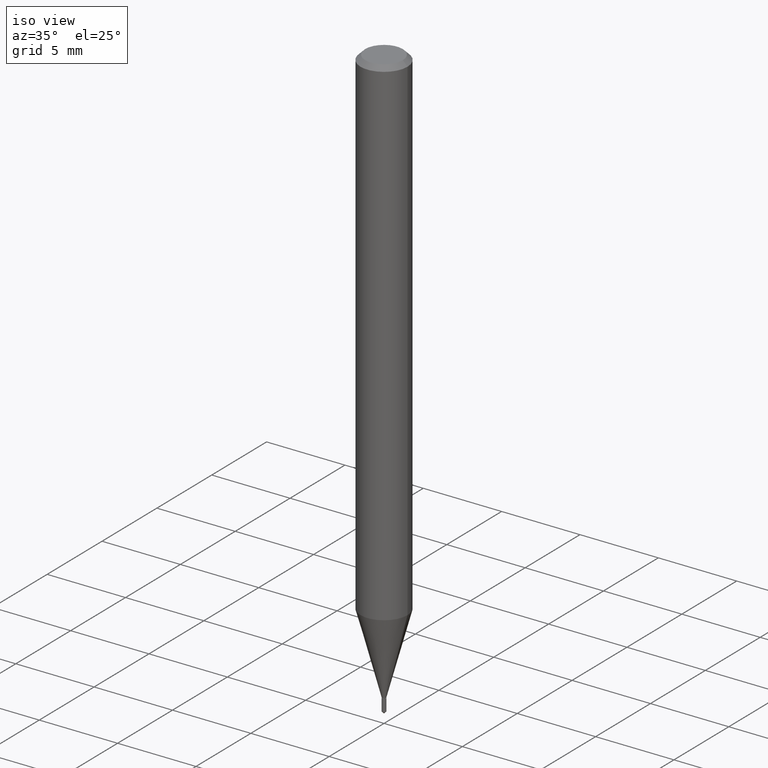
[diagram: clean part render]
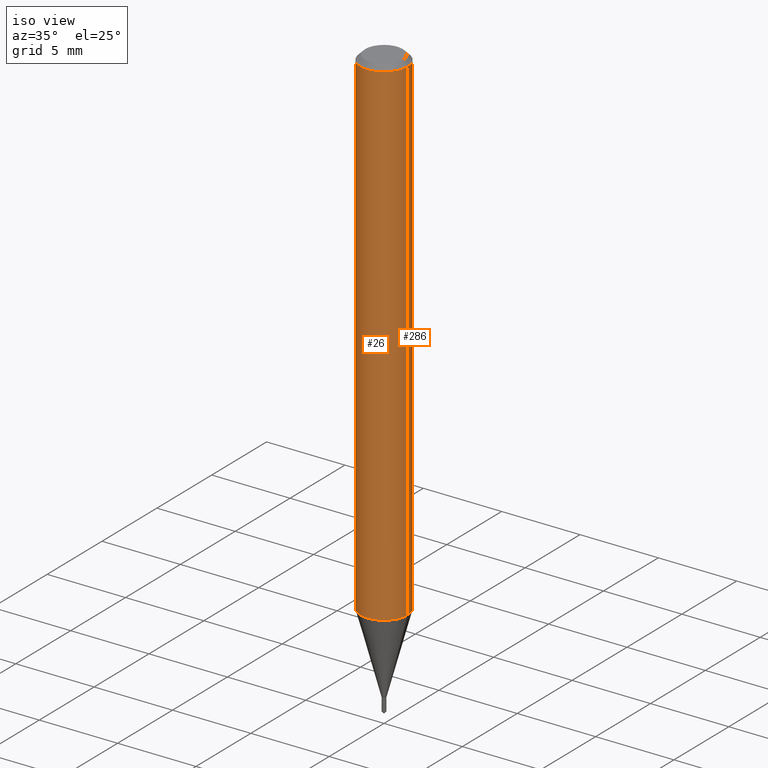
[diagram: same view with one multi-face feature highlighted, each face labeled with its STEP entity id]
A machine part, iso view. The highlighted faces form ONE feature: a constant-radius fillet chain: 2 tangent blend faces with common blend radius 1.4999 mm. The faces share edges in the B-rep.
Their STEP definitions:
[1] entity #26 (Cylinder):
#3 = VERTEX_POINT ( 'NONE', #424 ) ;
#23 = VECTOR ( 'NONE', #184, 39.37007874015748143 ) ;
#26 = ADVANCED_FACE ( 'NONE', ( #76 ), #464, .T. ) ;
#28 = ORIENTED_EDGE ( 'NONE', *, *, #42, .T. ) ;
#42 = EDGE_CURVE ( 'NONE', #3, #381, #220, .T. ) ;
#46 = VECTOR ( 'NONE', #110, 39.37007874015748143 ) ;
#60 = AXIS2_PLACEMENT_3D ( 'NONE', #336, #227, #155 ) ;
#76 = FACE_OUTER_BOUND ( 'NONE', #450, .T. ) ;
#88 = DIRECTION ( 'NONE',  ( -2.445468806185136597E-29, 3.491481338843145583E-15, 1.000000000000000000 ) ) ;
#95 = ORIENTED_EDGE ( 'NONE', *, *, #199, .T. ) ;
#99 = VERTEX_POINT ( 'NONE', #109 ) ;
#109 = CARTESIAN_POINT ( 'NONE',  ( -0.05905000000000017180, -3.969598695798013952E-15, -1.257109448770144855 ) ) ;
#110 = DIRECTION ( 'NONE',  ( -2.445468806185136877E-29, 3.491481338843145188E-15, 1.000000000000000000 ) ) ;
#123 = CARTESIAN_POINT ( 'NONE',  ( 3.074221942927981307E-29, -4.389174181264353445E-15, -1.257109448770144855 ) ) ;
#139 = ORIENTED_EDGE ( 'NONE', *, *, #233, .F. ) ;
#148 = CARTESIAN_POINT ( 'NONE',  ( 0.05904999999999999832, -4.535783407291118600E-16, -0.01181000000000007565 ) ) ;
#155 = DIRECTION ( 'NONE',  ( 1.000000000000000000, -6.982962677686267499E-15, 4.876176775795936353E-29 ) ) ;
#167 = VERTEX_POINT ( 'NONE', #240 ) ;
#184 = DIRECTION ( 'NONE',  ( -2.445468806185136877E-29, 3.491481338843145188E-15, 1.000000000000000000 ) ) ;
#197 = AXIS2_PLACEMENT_3D ( 'NONE', #433, #88, #237 ) ;
#199 = EDGE_CURVE ( 'NONE', #99, #3, #412, .T. ) ;
#220 = LINE ( 'NONE', #377, #23 ) ;
#227 = DIRECTION ( 'NONE',  ( -2.445468806185136597E-29, 3.491481338843145583E-15, 1.000000000000000000 ) ) ;
#233 = EDGE_CURVE ( 'NONE', #167, #381, #421, .T. ) ;
#235 = DIRECTION ( 'NONE',  ( -2.445468806185136597E-29, 3.491481338843145583E-15, 1.000000000000000000 ) ) ;
#237 = DIRECTION ( 'NONE',  ( 1.000000000000000000, -6.982962677686266711E-15, 0.000000000000000000 ) ) ;
#240 = CARTESIAN_POINT ( 'NONE',  ( -0.05904999999999999832, -1.795628802471704516E-15, -0.01181000000000007565 ) ) ;
#287 = ORIENTED_EDGE ( 'NONE', *, *, #303, .F. ) ;
#303 = EDGE_CURVE ( 'NONE', #99, #167, #489, .T. ) ;
#319 = DIRECTION ( 'NONE',  ( 1.000000000000000000, -6.982962677686268288E-15, 0.000000000000000000 ) ) ;
#336 = CARTESIAN_POINT ( 'NONE',  ( 0.000000000000000000, 0.000000000000000000, 0.000000000000000000 ) ) ;
#377 = CARTESIAN_POINT ( 'NONE',  ( 0.05905000000000008159, -4.123439461173746736E-16, 2.879382386107504424E-30 ) ) ;
#378 = CARTESIAN_POINT ( 'NONE',  ( -0.05905000000000008159, 4.195754854663397395E-16, -2.904631170795525745E-30 ) ) ;
#381 = VERTEX_POINT ( 'NONE', #148 ) ;
#388 = AXIS2_PLACEMENT_3D ( 'NONE', #123, #235, #319 ) ;
#412 = CIRCLE ( 'NONE', #388, 0.05905000000000017180 ) ;
#421 = CIRCLE ( 'NONE', #197, 0.05904999999999999832 ) ;
#424 = CARTESIAN_POINT ( 'NONE',  ( 0.05905000000000017180, -4.801518127381729154E-15, -1.257109448770144855 ) ) ;
#433 = CARTESIAN_POINT ( 'NONE',  ( 2.888098660104664642E-31, -4.123439461173780879E-17, -0.01181000000000007565 ) ) ;
#450 = EDGE_LOOP ( 'NONE', ( #287, #95, #28, #139 ) ) ;
#464 = CYLINDRICAL_SURFACE ( 'NONE', #60, 0.05905000000000008159 ) ;
#489 = LINE ( 'NONE', #378, #46 ) ;
[2] entity #286 (Cylinder):
#3 = VERTEX_POINT ( 'NONE', #424 ) ;
#23 = VECTOR ( 'NONE', #184, 39.37007874015748143 ) ;
#42 = EDGE_CURVE ( 'NONE', #3, #381, #220, .T. ) ;
#46 = VECTOR ( 'NONE', #110, 39.37007874015748143 ) ;
#92 = DIRECTION ( 'NONE',  ( -2.445468806185136597E-29, 3.491481338843145583E-15, 1.000000000000000000 ) ) ;
#99 = VERTEX_POINT ( 'NONE', #109 ) ;
#104 = CARTESIAN_POINT ( 'NONE',  ( 3.074221942927981307E-29, -4.389174181264353445E-15, -1.257109448770144855 ) ) ;
#108 = DIRECTION ( 'NONE',  ( -2.445468806185136597E-29, 3.491481338843145583E-15, 1.000000000000000000 ) ) ;
#109 = CARTESIAN_POINT ( 'NONE',  ( -0.05905000000000017180, -3.969598695798013952E-15, -1.257109448770144855 ) ) ;
#110 = DIRECTION ( 'NONE',  ( -2.445468806185136877E-29, 3.491481338843145188E-15, 1.000000000000000000 ) ) ;
#148 = CARTESIAN_POINT ( 'NONE',  ( 0.05904999999999999832, -4.535783407291118600E-16, -0.01181000000000007565 ) ) ;
#167 = VERTEX_POINT ( 'NONE', #240 ) ;
#169 = DIRECTION ( 'NONE',  ( 1.000000000000000000, -6.982962677686267499E-15, 4.876176775795936353E-29 ) ) ;
#184 = DIRECTION ( 'NONE',  ( -2.445468806185136877E-29, 3.491481338843145188E-15, 1.000000000000000000 ) ) ;
#188 = ORIENTED_EDGE ( 'NONE', *, *, #241, .F. ) ;
#201 = DIRECTION ( 'NONE',  ( 1.000000000000000000, -6.982962677686266711E-15, 0.000000000000000000 ) ) ;
#212 = DIRECTION ( 'NONE',  ( -2.445468806185136597E-29, 3.491481338843145583E-15, 1.000000000000000000 ) ) ;
#220 = LINE ( 'NONE', #377, #23 ) ;
#239 = AXIS2_PLACEMENT_3D ( 'NONE', #328, #108, #169 ) ;
#240 = CARTESIAN_POINT ( 'NONE',  ( -0.05904999999999999832, -1.795628802471704516E-15, -0.01181000000000007565 ) ) ;
#241 = EDGE_CURVE ( 'NONE', #381, #167, #282, .T. ) ;
#264 = AXIS2_PLACEMENT_3D ( 'NONE', #281, #92, #201 ) ;
#281 = CARTESIAN_POINT ( 'NONE',  ( 2.888098660104664642E-31, -4.123439461173780879E-17, -0.01181000000000007565 ) ) ;
#282 = CIRCLE ( 'NONE', #264, 0.05904999999999999832 ) ;
#284 = CYLINDRICAL_SURFACE ( 'NONE', #239, 0.05905000000000008159 ) ;
#285 = ORIENTED_EDGE ( 'NONE', *, *, #303, .T. ) ;
#286 = ADVANCED_FACE ( 'NONE', ( #361 ), #284, .T. ) ;
#289 = ORIENTED_EDGE ( 'NONE', *, *, #42, .F. ) ;
#290 = EDGE_CURVE ( 'NONE', #3, #99, #404, .T. ) ;
#303 = EDGE_CURVE ( 'NONE', #99, #167, #489, .T. ) ;
#328 = CARTESIAN_POINT ( 'NONE',  ( 0.000000000000000000, 0.000000000000000000, 0.000000000000000000 ) ) ;
#337 = DIRECTION ( 'NONE',  ( 1.000000000000000000, -6.982962677686268288E-15, 0.000000000000000000 ) ) ;
#361 = FACE_OUTER_BOUND ( 'NONE', #362, .T. ) ;
#362 = EDGE_LOOP ( 'NONE', ( #394, #285, #188, #289 ) ) ;
#377 = CARTESIAN_POINT ( 'NONE',  ( 0.05905000000000008159, -4.123439461173746736E-16, 2.879382386107504424E-30 ) ) ;
#378 = CARTESIAN_POINT ( 'NONE',  ( -0.05905000000000008159, 4.195754854663397395E-16, -2.904631170795525745E-30 ) ) ;
#381 = VERTEX_POINT ( 'NONE', #148 ) ;
#394 = ORIENTED_EDGE ( 'NONE', *, *, #290, .T. ) ;
#404 = CIRCLE ( 'NONE', #405, 0.05905000000000017180 ) ;
#405 = AXIS2_PLACEMENT_3D ( 'NONE', #104, #212, #337 ) ;
#424 = CARTESIAN_POINT ( 'NONE',  ( 0.05905000000000017180, -4.801518127381729154E-15, -1.257109448770144855 ) ) ;
#489 = LINE ( 'NONE', #378, #46 ) ;